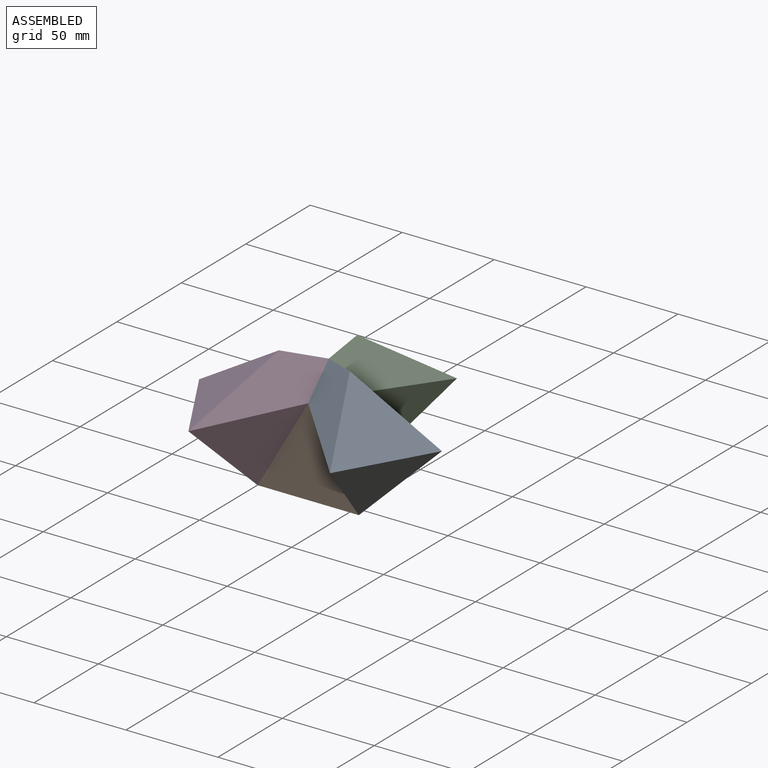
[diagram: assembled view]
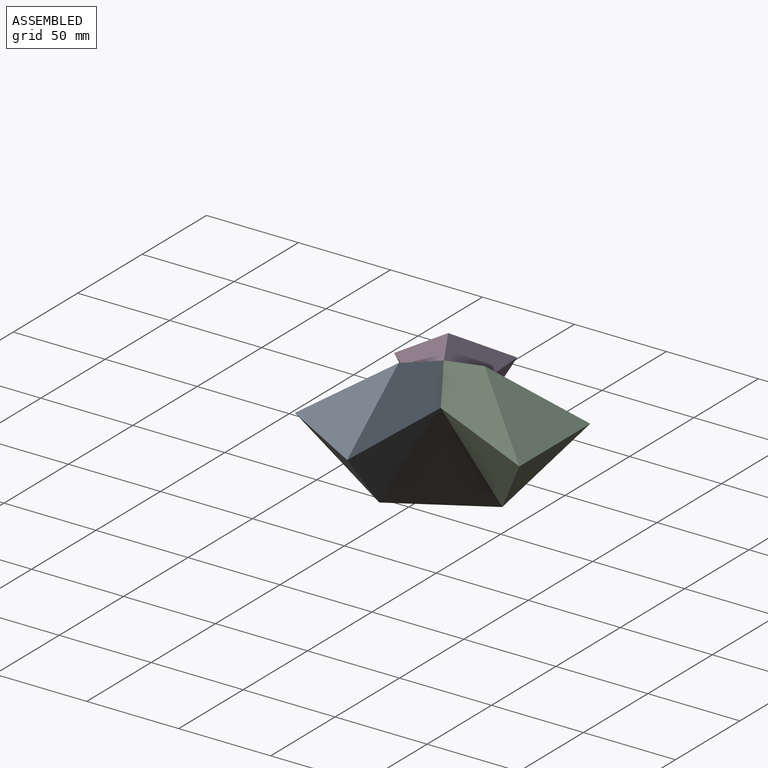
[diagram: assembled view, second angle]
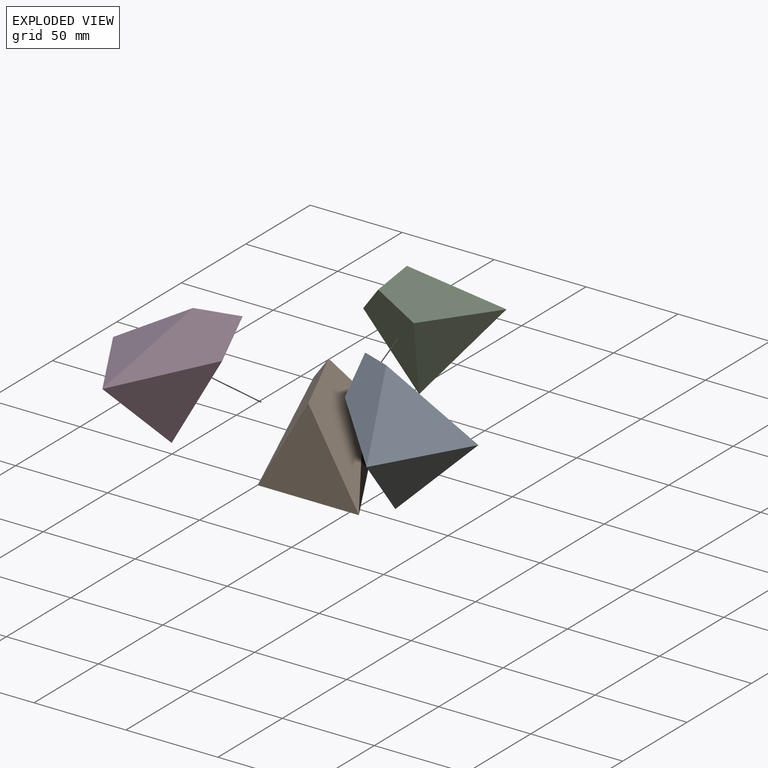
[diagram: exploded view]
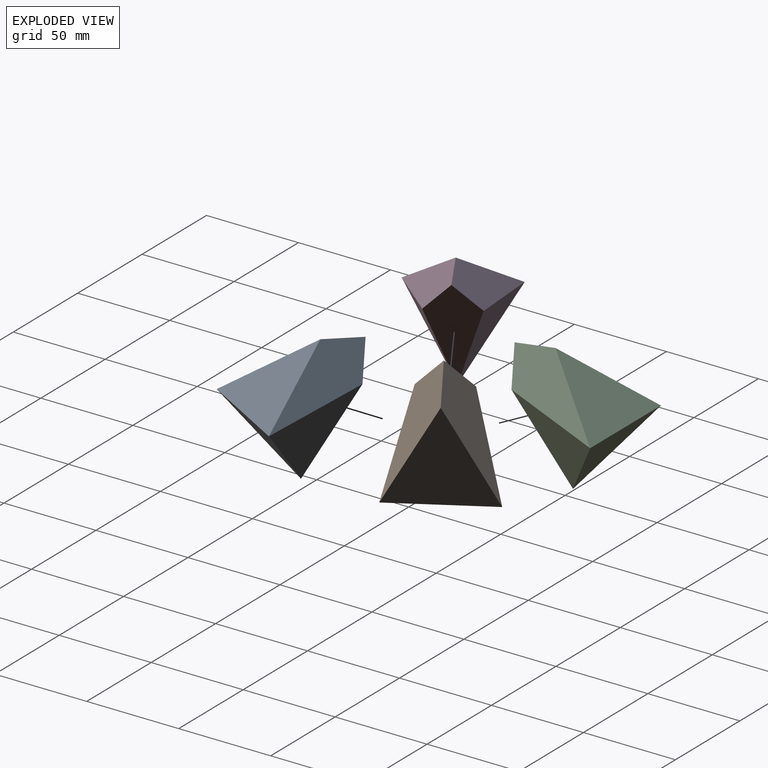
[diagram: exploded view, second angle]
ASSEMBLY  parts=4 mates=3
PART A: 7 faces, bbox 55x47.6x63.5 mm
  f0: plane 47.63x47.63mm, normal (0.87,0.5,0), area 1309.5mm2, adj f2,f3,f6
  f1: plane 47.63x47.63mm, normal (-0.87,0.5,0), area 1309.5mm2, adj f2,f3,f5
  f2: plane 63.5x31.75mm, normal (0,0.89,0.45), area 976.1mm2, adj f0,f1,f5,f6
  f3: plane 54.99x47.63mm, normal (0,0,-1), area 1309.5mm2, adj f0,f1,f4
  f4: plane 54.99x47.63mm, normal (0,-1,0), area 1309.5mm2, adj f3,f5,f6
  f5: plane 63.5x27.5mm, normal (-0.77,-0.45,0.45), area 976.1mm2, adj f1,f2,f4,f6
  f6: plane 63.5x27.5mm, normal (0.77,-0.45,0.45), area 976.1mm2, adj f0,f2,f4,f5
PART B: same geometry as A
PART C: same geometry as A
PART D: same geometry as A
PLACE A rot(axis=(0,-0.71,-0.71),78.5deg) t=(25.08,-19.55,30.71)mm
PLACE B t=(-18.91,5.85,5.31)mm
PLACE C rot(axis=(0,-0.45,0.89),180deg) t=(-18.91,56.65,30.71)mm
PLACE D rot(axis=(0,0.71,0.71),78.5deg) t=(-62.9,-19.55,30.71)mm
MATE fastened C.f2 <-> B.f2  axis (0,-0.89,-0.45) through (-18.91,19.08,42.35)mm
MATE fastened A.f5 <-> B.f6  axis (-0.77,0.45,-0.45) through (-7.45,-0.76,42.35)mm
MATE fastened D.f6 <-> B.f5  axis (0.77,0.45,-0.45) through (-30.37,-0.76,42.35)mm
